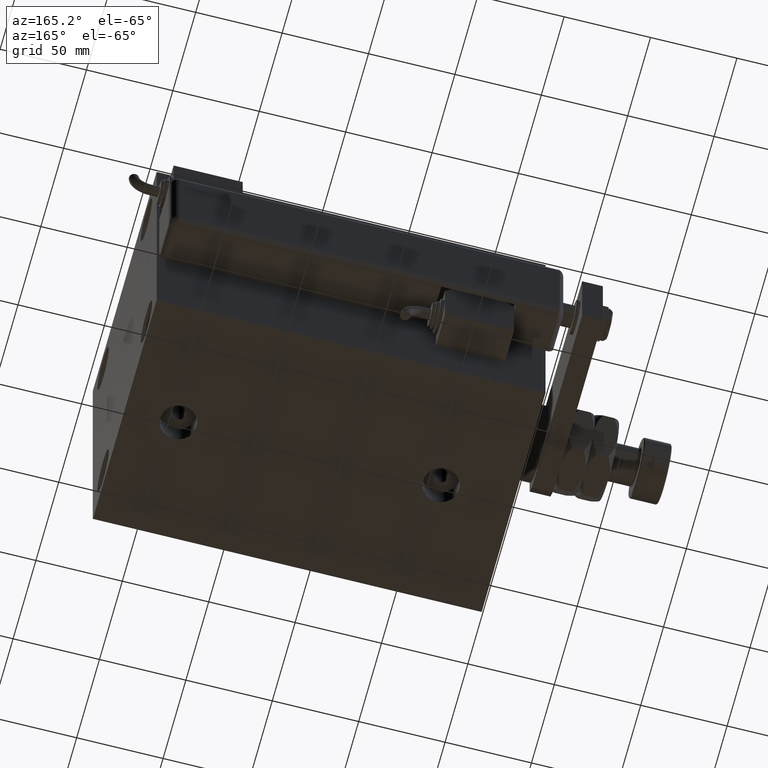
[diagram: clean part render]
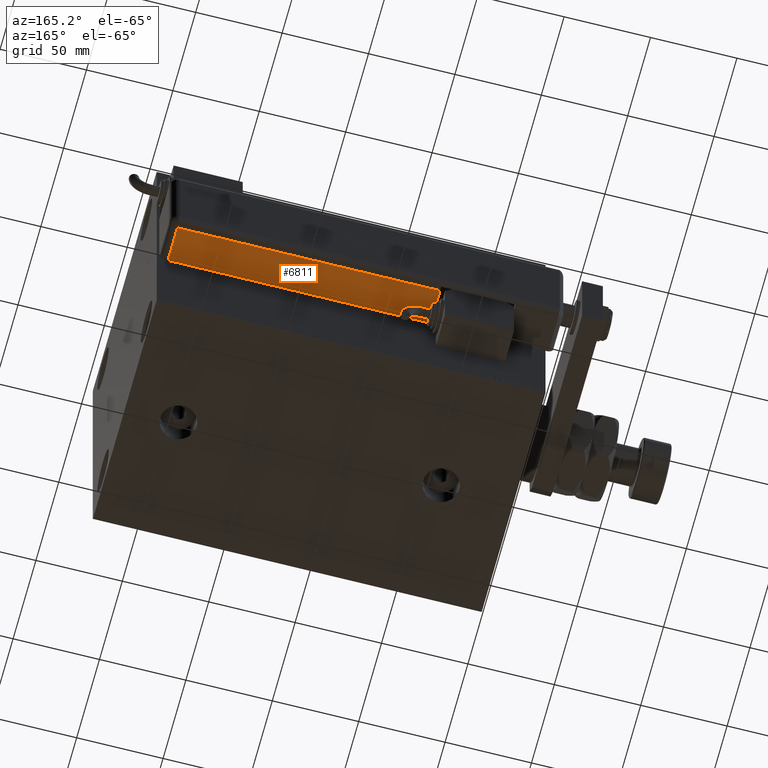
[diagram: same view with one face highlighted and labeled with its STEP entity id]
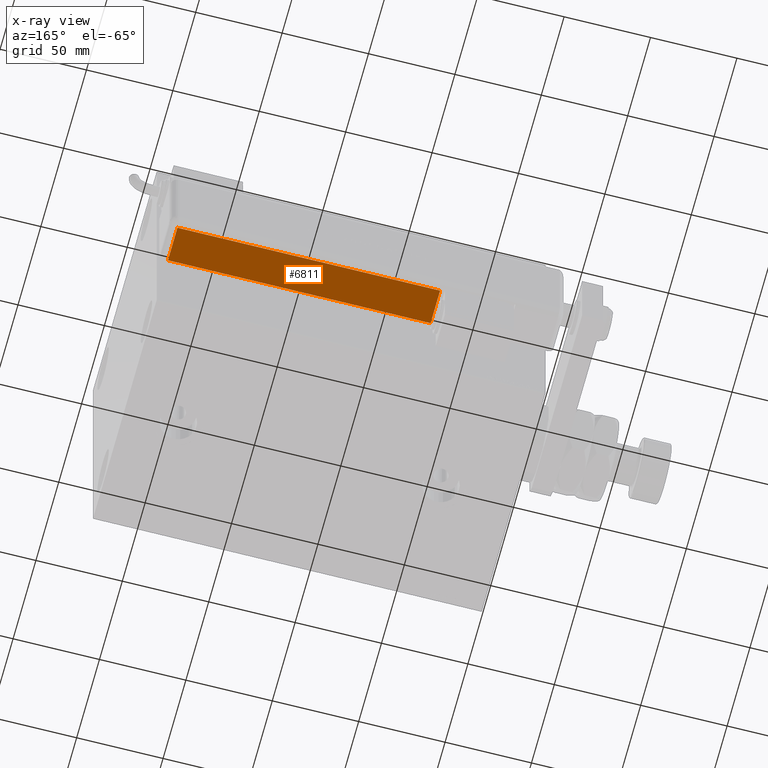
[diagram: x-ray of the same camera — body ghosted, the highlighted face saturated]
A machine part, auxiliary view. The second image highlights one B-rep face of the part: STEP entity #6811.
The next image is the same camera in x-ray: the body ghosted, the highlighted face saturated — about 0% of this face is hidden behind the body in this view.
In plain terms, the highlighted planar face has unit normal (0, 0, 1).
Its self-contained STEP definition (entity closure, byte-faithful):
#4959 = CARTESIAN_POINT ( 'NONE',  ( -28.99999999999999645, 20.79999999999998295, 225.0000000000000000 ) ) ;
#6811 = ADVANCED_FACE ( 'NONE', ( #52748 ), #9182, .F. ) ;
#6817 = CARTESIAN_POINT ( 'NONE',  ( -28.99999999999999645, -9.421223957302265857E-15, 225.0000000000000000 ) ) ;
#7301 = EDGE_CURVE ( 'NONE', #35679, #23678, #36385, .T. ) ;
#7627 = EDGE_CURVE ( 'NONE', #29373, #35679, #26760, .T. ) ;
#9182 = PLANE ( 'NONE',  #29046 ) ;
#13196 = ORIENTED_EDGE ( 'NONE', *, *, #40829, .T. ) ;
#15187 = VECTOR ( 'NONE', #34201, 1000.000000000000000 ) ;
#16602 = ORIENTED_EDGE ( 'NONE', *, *, #7301, .F. ) ;
#16637 = EDGE_CURVE ( 'NONE', #22817, #23678, #60758, .T. ) ;
#16662 = DIRECTION ( 'NONE',  ( -0.000000000000000000, -0.000000000000000000, -1.000000000000000000 ) ) ;
#17489 = ORIENTED_EDGE ( 'NONE', *, *, #7627, .F. ) ;
#19224 = CARTESIAN_POINT ( 'NONE',  ( -28.99999999999999645, -9.421223957302265857E-15, 5.000000000000004441 ) ) ;
#21121 = EDGE_LOOP ( 'NONE', ( #16602, #17489, #13196, #58102 ) ) ;
#22817 = VERTEX_POINT ( 'NONE', #43040 ) ;
#23678 = VERTEX_POINT ( 'NONE', #19224 ) ;
#24992 = VECTOR ( 'NONE', #16662, 1000.000000000000000 ) ;
#25487 = DIRECTION ( 'NONE',  ( 0.000000000000000000, -1.000000000000000000, 0.000000000000000000 ) ) ;
#26760 = LINE ( 'NONE', #42669, #30037 ) ;
#29046 = AXIS2_PLACEMENT_3D ( 'NONE', #43202, #51506, #62574 ) ;
#29117 = LINE ( 'NONE', #4959, #15187 ) ;
#29373 = VERTEX_POINT ( 'NONE', #51877 ) ;
#30037 = VECTOR ( 'NONE', #41711, 1000.000000000000000 ) ;
#30276 = CARTESIAN_POINT ( 'NONE',  ( -28.99999999999999645, -1.040834085586084257E-14, 5.000000000000004441 ) ) ;
#34201 = DIRECTION ( 'NONE',  ( 0.000000000000000000, 0.000000000000000000, -1.000000000000000000 ) ) ;
#35679 = VERTEX_POINT ( 'NONE', #36790 ) ;
#36385 = LINE ( 'NONE', #6817, #24992 ) ;
#36790 = CARTESIAN_POINT ( 'NONE',  ( -28.99999999999999645, -9.421223957302264279E-15, 157.0000000000000284 ) ) ;
#40829 = EDGE_CURVE ( 'NONE', #29373, #22817, #29117, .T. ) ;
#41711 = DIRECTION ( 'NONE',  ( 0.000000000000000000, -1.000000000000000000, 0.000000000000000000 ) ) ;
#42669 = CARTESIAN_POINT ( 'NONE',  ( -28.99999999999999645, 22.99999999999998934, 157.0000000000000284 ) ) ;
#43040 = CARTESIAN_POINT ( 'NONE',  ( -28.99999999999999645, 20.79999999999998295, 5.000000000000004441 ) ) ;
#43202 = CARTESIAN_POINT ( 'NONE',  ( -28.99999999999999645, 25.79999999999998295, 225.0000000000000000 ) ) ;
#51506 = DIRECTION ( 'NONE',  ( 1.000000000000000000, 0.000000000000000000, -0.000000000000000000 ) ) ;
#51877 = CARTESIAN_POINT ( 'NONE',  ( -28.99999999999999645, 20.79999999999998295, 157.0000000000000284 ) ) ;
#52748 = FACE_OUTER_BOUND ( 'NONE', #21121, .T. ) ;
#56110 = VECTOR ( 'NONE', #25487, 1000.000000000000000 ) ;
#58102 = ORIENTED_EDGE ( 'NONE', *, *, #16637, .T. ) ;
#60758 = LINE ( 'NONE', #30276, #56110 ) ;
#62574 = DIRECTION ( 'NONE',  ( -0.000000000000000000, 0.000000000000000000, -1.000000000000000000 ) ) ;